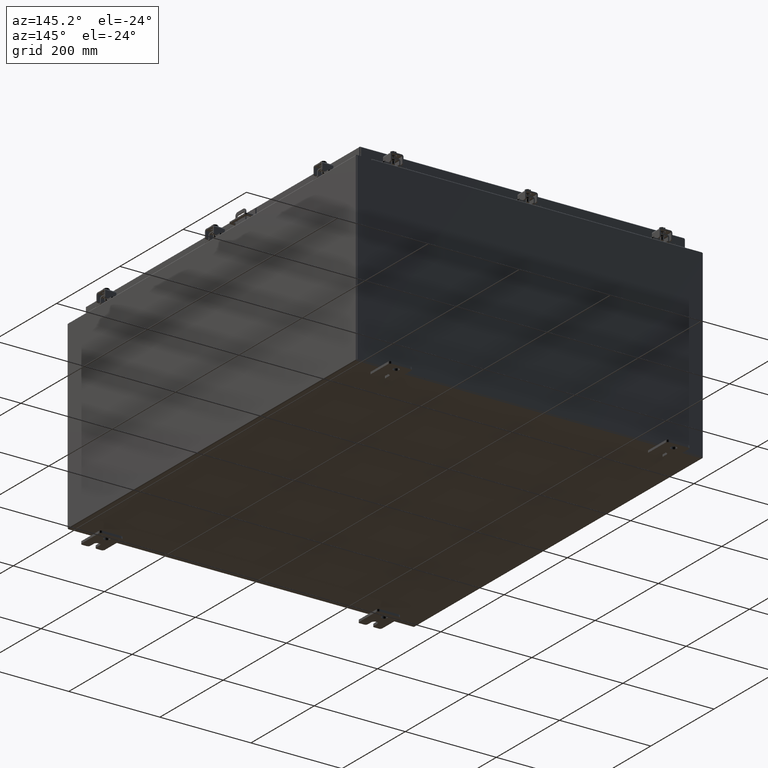
[diagram: clean part render]
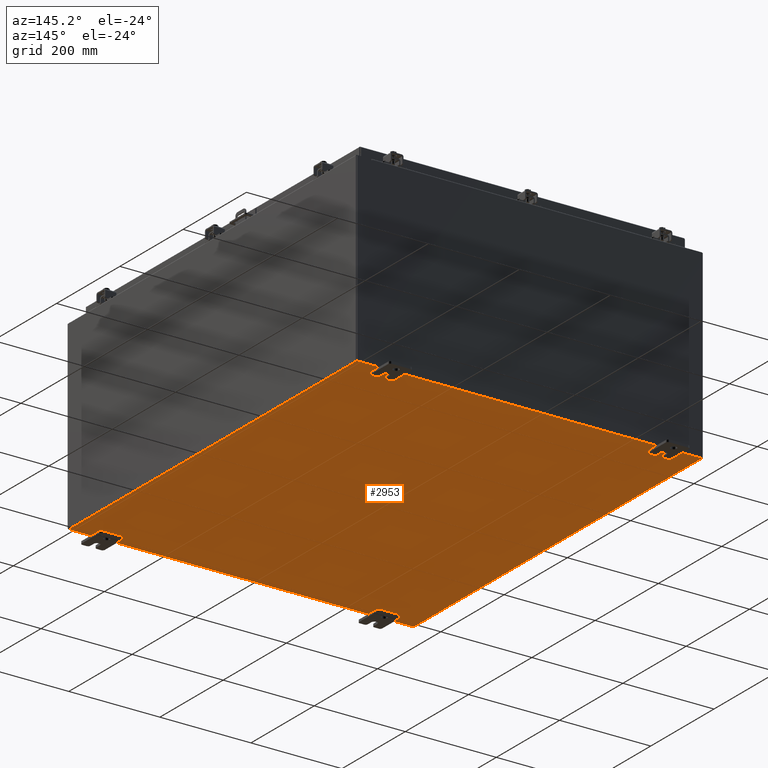
[diagram: same view with one face highlighted and labeled with its STEP entity id]
A machine part, auxiliary view. The second image highlights one B-rep face of the part: STEP entity #2953.
In plain terms, the highlighted planar face has unit normal (0, 0, -1).
Its self-contained STEP definition (entity closure, byte-faithful):
#2823 = CARTESIAN_POINT ( 'NONE',  ( -15.00000000000000400, 17.92530000000000000, -0.07470000000000000300 ) ) ;
#2953 = ADVANCED_FACE ( 'NONE', ( #35941 ), #21023, .T. ) ;
#3082 = CARTESIAN_POINT ( 'NONE',  ( 14.91229999999999800, -17.92530000000000000, -0.07470000000000000300 ) ) ;
#4222 = VERTEX_POINT ( 'NONE', #41985 ) ;
#4823 = VERTEX_POINT ( 'NONE', #36489 ) ;
#5027 = EDGE_CURVE ( 'NONE', #4222, #39011, #23737, .T. ) ;
#5051 = CARTESIAN_POINT ( 'NONE',  ( -15.00000000000000400, -17.92530000000000000, -0.07470000000000000300 ) ) ;
#5390 = LINE ( 'NONE', #26060, #30966 ) ;
#10219 = ORIENTED_EDGE ( 'NONE', *, *, #38157, .F. ) ;
#13181 = VERTEX_POINT ( 'NONE', #3082 ) ;
#13543 = EDGE_CURVE ( 'NONE', #4222, #13181, #17000, .T. ) ;
#13831 = VECTOR ( 'NONE', #17661, 39.37007874015748100 ) ;
#14474 = DIRECTION ( 'NONE',  ( -1.000000000000000000, 0.0000000000000000000, -0.0000000000000000000 ) ) ;
#17000 = LINE ( 'NONE', #5051, #32670 ) ;
#17309 = CARTESIAN_POINT ( 'NONE',  ( -14.91230000000000200, 17.92530000000000000, -0.07470000000000000300 ) ) ;
#17661 = DIRECTION ( 'NONE',  ( -0.0000000000000000000, 1.000000000000000000, -0.0000000000000000000 ) ) ;
#17831 = ORIENTED_EDGE ( 'NONE', *, *, #13543, .F. ) ;
#18319 = DIRECTION ( 'NONE',  ( 1.000000000000000000, 0.0000000000000000000, 0.0000000000000000000 ) ) ;
#19630 = ORIENTED_EDGE ( 'NONE', *, *, #20599, .T. ) ;
#20121 = CARTESIAN_POINT ( 'NONE',  ( -14.91230000000000200, -17.92530000000000000, -0.07469999999999994700 ) ) ;
#20599 = EDGE_CURVE ( 'NONE', #4823, #13181, #5390, .T. ) ;
#21023 = PLANE ( 'NONE',  #34138 ) ;
#23078 = DIRECTION ( 'NONE',  ( -0.0000000000000000000, -1.000000000000000000, 8.208677865577646300E-017 ) ) ;
#23737 = LINE ( 'NONE', #20121, #13831 ) ;
#26060 = CARTESIAN_POINT ( 'NONE',  ( 14.91229999999999800, 17.92530000000000000, -0.07470000000000251400 ) ) ;
#26142 = DIRECTION ( 'NONE',  ( -1.000000000000000000, -0.0000000000000000000, -0.0000000000000000000 ) ) ;
#27950 = VECTOR ( 'NONE', #26142, 39.37007874015748100 ) ;
#30966 = VECTOR ( 'NONE', #23078, 39.37007874015748100 ) ;
#32670 = VECTOR ( 'NONE', #18319, 39.37007874015748100 ) ;
#34138 = AXIS2_PLACEMENT_3D ( 'NONE', #37678, #37813, #14474 ) ;
#35391 = ORIENTED_EDGE ( 'NONE', *, *, #5027, .T. ) ;
#35941 = FACE_OUTER_BOUND ( 'NONE', #42195, .T. ) ;
#36489 = CARTESIAN_POINT ( 'NONE',  ( 14.91229999999999800, 17.92530000000000000, -0.07470000000000251400 ) ) ;
#36839 = LINE ( 'NONE', #2823, #27950 ) ;
#37678 = CARTESIAN_POINT ( 'NONE',  ( 0.0000000000000000000, 0.0000000000000000000, -0.07470000000000000300 ) ) ;
#37813 = DIRECTION ( 'NONE',  ( 0.0000000000000000000, 0.0000000000000000000, -1.000000000000000000 ) ) ;
#38157 = EDGE_CURVE ( 'NONE', #4823, #39011, #36839, .T. ) ;
#39011 = VERTEX_POINT ( 'NONE', #17309 ) ;
#41985 = CARTESIAN_POINT ( 'NONE',  ( -14.91230000000000200, -17.92530000000000000, -0.07469999999999994700 ) ) ;
#42195 = EDGE_LOOP ( 'NONE', ( #17831, #35391, #10219, #19630 ) ) ;